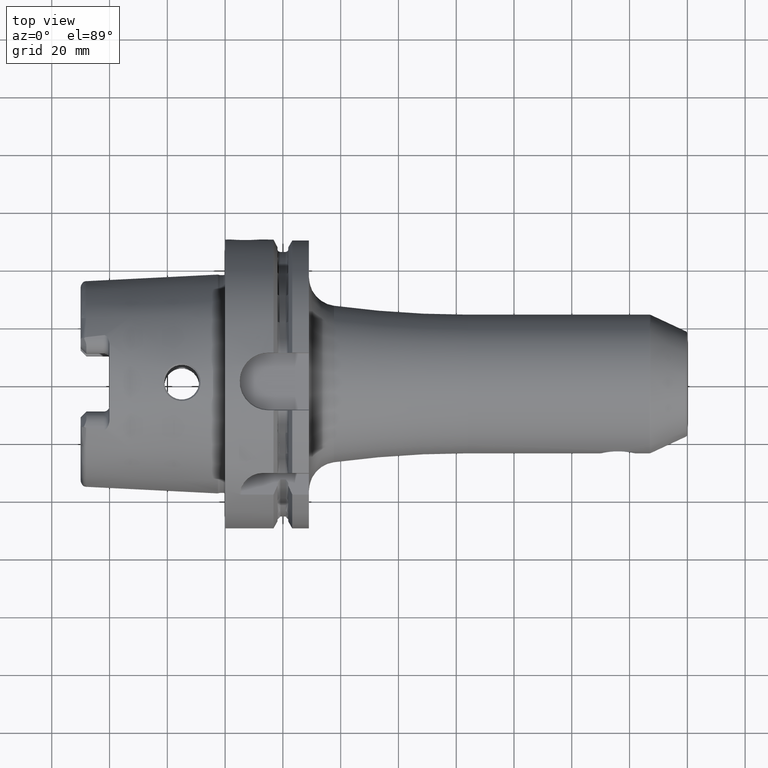
[diagram: clean part render]
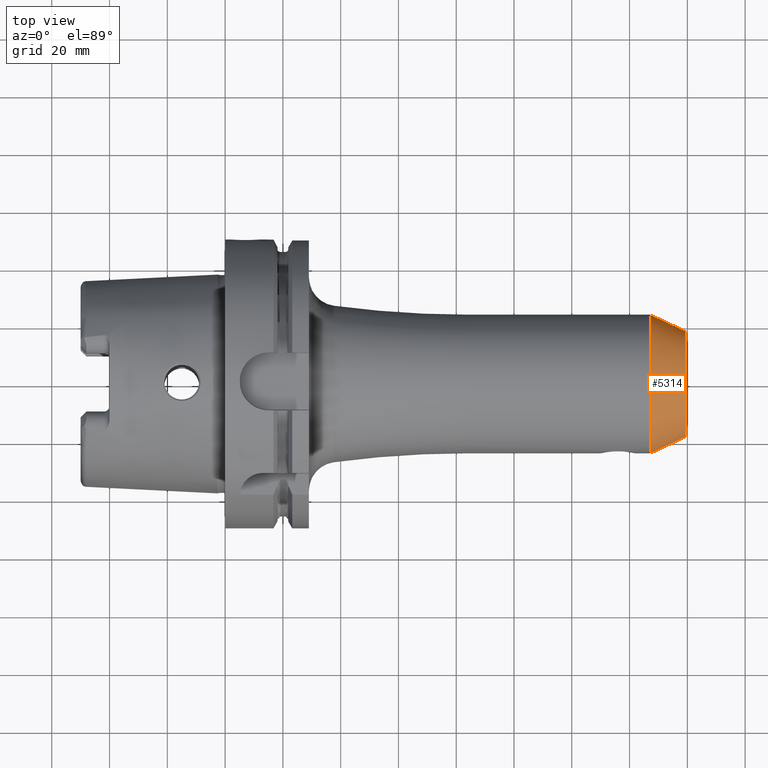
[diagram: same view with one face highlighted and labeled with its STEP entity id]
A machine part, top view. The second image highlights one B-rep face of the part: STEP entity #5314.
In plain terms, the highlighted conical surface has half-angle 25 deg.
Its self-contained STEP definition (entity closure, byte-faithful):
#1949=DIRECTION('',(-9.063077870367E-1,-4.226182617407E-1,-7.546725058622E-14));
#1950=VECTOR('',#1949,1.333844457546E1);
#1951=CARTESIAN_POINT('',(1.594226182617E2,-1.826923752623E1,
8.561328306670E-14));
#1952=LINE('',#1951,#1950);
#1958=DIRECTION('',(-9.063077870367E-1,4.226182617407E-1,7.534246484518E-14));
#1959=VECTOR('',#1958,1.333844457546E1);
#1960=CARTESIAN_POINT('',(1.594226182617E2,1.826923752623E1,
-8.617261714819E-14));
#1961=LINE('',#1960,#1959);
#1962=CARTESIAN_POINT('',(1.473338820760E2,0.E0,0.E0));
#1963=DIRECTION('',(-1.E0,0.E0,0.E0));
#1964=DIRECTION('',(0.E0,-1.E0,0.E0));
#1965=AXIS2_PLACEMENT_3D('',#1962,#1963,#1964);
#1967=CARTESIAN_POINT('',(1.594226182617E2,0.E0,0.E0));
#1968=DIRECTION('',(-1.E0,0.E0,0.E0));
#1969=DIRECTION('',(0.E0,-1.E0,0.E0));
#1970=AXIS2_PLACEMENT_3D('',#1967,#1968,#1969);
#3321=CARTESIAN_POINT('',(1.473338820760E2,2.390630778704E1,0.E0));
#3322=CARTESIAN_POINT('',(1.473338820760E2,-2.390630778704E1,0.E0));
#3323=VERTEX_POINT('',#3321);
#3324=VERTEX_POINT('',#3322);
#3325=CARTESIAN_POINT('',(1.594226182617E2,1.826923752623E1,0.E0));
#3326=CARTESIAN_POINT('',(1.594226182617E2,-1.826923752623E1,0.E0));
#3327=VERTEX_POINT('',#3325);
#3328=VERTEX_POINT('',#3326);
#5302=CARTESIAN_POINT('',(1.533782501689E2,0.E0,0.E0));
#5303=DIRECTION('',(-1.E0,0.E0,0.E0));
#5304=DIRECTION('',(0.E0,1.E0,0.E0));
#5305=AXIS2_PLACEMENT_3D('',#5302,#5303,#5304);
#5306=CONICAL_SURFACE('',#5305,2.108777265663E1,2.5E1);
#5307=ORIENTED_EDGE('',*,*,#5267,.T.);
#5308=ORIENTED_EDGE('',*,*,#5297,.F.);
#5310=ORIENTED_EDGE('',*,*,#5309,.F.);
#5311=ORIENTED_EDGE('',*,*,#5293,.T.);
#5312=EDGE_LOOP('',(#5307,#5308,#5310,#5311));
#5313=FACE_OUTER_BOUND('',#5312,.F.);
#5314=ADVANCED_FACE('',(#5313),#5306,.T.);
#1966=CIRCLE('',#1965,2.390630778704E1);
#1971=CIRCLE('',#1970,1.826923752623E1);
#5267=EDGE_CURVE('',#3324,#3323,#1966,.T.);
#5293=EDGE_CURVE('',#3328,#3324,#1952,.T.);
#5297=EDGE_CURVE('',#3327,#3323,#1961,.T.);
#5309=EDGE_CURVE('',#3328,#3327,#1971,.T.);